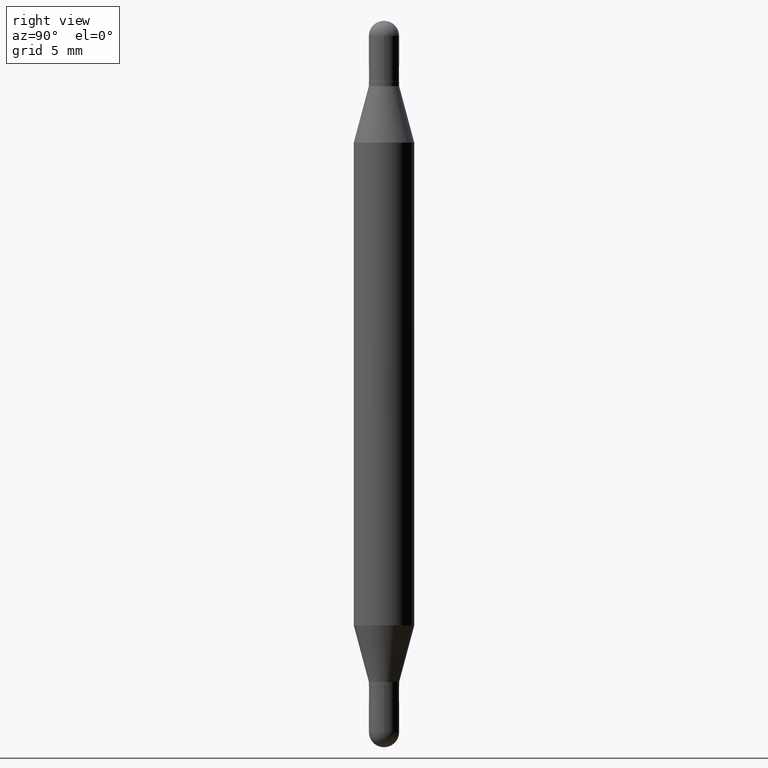
[diagram: clean part render]
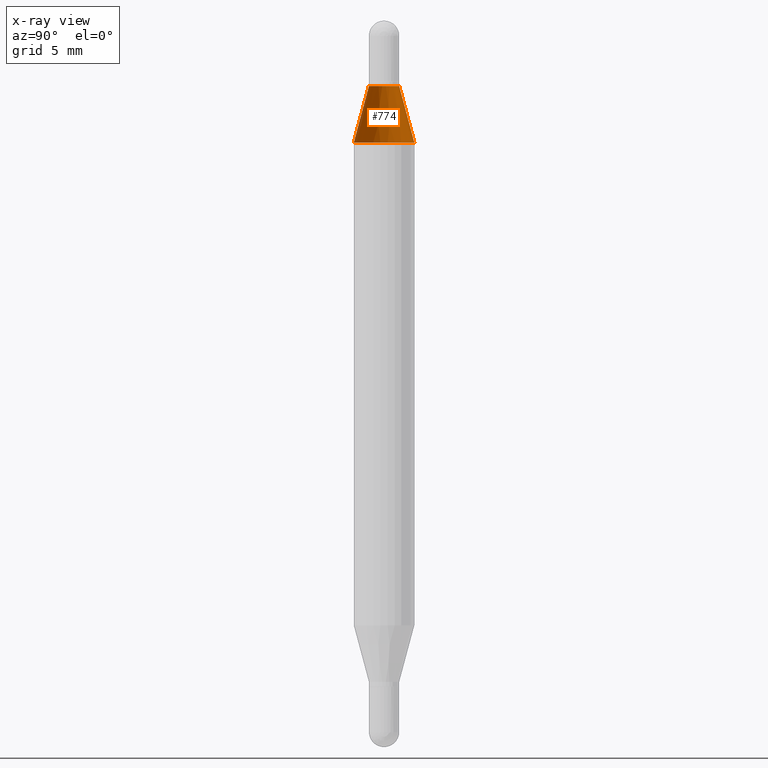
[diagram: x-ray — body ghosted, one internal face saturated and labeled with its STEP entity id]
A machine part, right view, then the same camera in x-ray: the body is ghosted and one INTERNAL B-rep face — a face not visible from any outside direction — is saturated and labeled: STEP entity #774.
In plain terms, the highlighted conical surface has half-angle 15 deg.
Its self-contained STEP definition (entity closure, byte-faithful):
#34 = CARTESIAN_POINT ( 'NONE',  ( 3.338398972236912231E-29, -4.781697257586543245E-16, -0.1350000000000003419 ) ) ;
#91 = EDGE_CURVE ( 'NONE', #1107, #821, #895, .T. ) ;
#94 = VECTOR ( 'NONE', #228, 39.37007874015748143 ) ;
#185 = CIRCLE ( 'NONE', #939, 0.06250000000000000000 ) ;
#228 = DIRECTION ( 'NONE',  ( 1.775627540710965497E-15, 0.2588190451025182415, -0.9659258262890689783 ) ) ;
#231 = CARTESIAN_POINT ( 'NONE',  ( -4.364351673553610517E-16, -0.06250000000000088818, -0.2516265877365284065 ) ) ;
#258 = CARTESIAN_POINT ( 'NONE',  ( 3.053163748328396024E-29, -8.840261609153203283E-16, -0.2516265877365286285 ) ) ;
#280 = EDGE_LOOP ( 'NONE', ( #906, #756, #676, #460 ) ) ;
#281 = DIRECTION ( 'NONE',  ( -6.982962677686265133E-15, -1.000000000000000000, 3.278217592397152544E-15 ) ) ;
#340 = EDGE_CURVE ( 'NONE', #1107, #508, #775, .T. ) ;
#410 = VERTEX_POINT ( 'NONE', #231 ) ;
#418 = CARTESIAN_POINT ( 'NONE',  ( 2.143905624303914227E-16, 0.03124999999999917080, -0.1350000000000004252 ) ) ;
#460 = ORIENTED_EDGE ( 'NONE', *, *, #566, .F. ) ;
#495 = DIRECTION ( 'NONE',  ( -6.982962677686265922E-15, -1.000000000000000000, 3.278217592397115862E-15 ) ) ;
#508 = VERTEX_POINT ( 'NONE', #836 ) ;
#522 = CARTESIAN_POINT ( 'NONE',  ( 4.287811248607511431E-16, 0.06249999999999909100, -0.2516265877365287951 ) ) ;
#526 = DIRECTION ( 'NONE',  ( -6.982962677686265133E-15, -1.000000000000000000, 3.278217592397152544E-15 ) ) ;
#566 = EDGE_CURVE ( 'NONE', #508, #410, #854, .T. ) ;
#596 = EDGE_CURVE ( 'NONE', #821, #410, #185, .T. ) ;
#598 = AXIS2_PLACEMENT_3D ( 'NONE', #34, #1052, #281 ) ;
#624 = CARTESIAN_POINT ( 'NONE',  ( 3.338398972236912231E-29, -4.781697257586543245E-16, -0.1350000000000003419 ) ) ;
#667 = DIRECTION ( 'NONE',  ( -1.807323732225330534E-15, -0.2588190451025250138, -0.9659258262890670910 ) ) ;
#676 = ORIENTED_EDGE ( 'NONE', *, *, #596, .T. ) ;
#688 = CARTESIAN_POINT ( 'NONE',  ( -2.182175836776599662E-16, -0.03125000000000012490, -0.1350000000000002309 ) ) ;
#741 = AXIS2_PLACEMENT_3D ( 'NONE', #624, #983, #526 ) ;
#743 = CONICAL_SURFACE ( 'NONE', #598, 0.03124999999999964959, 0.2617993877991502960 ) ;
#756 = ORIENTED_EDGE ( 'NONE', *, *, #91, .T. ) ;
#774 = ADVANCED_FACE ( 'NONE', ( #786 ), #743, .T. ) ;
#775 = CIRCLE ( 'NONE', #741, 0.03124999999999964959 ) ;
#786 = FACE_OUTER_BOUND ( 'NONE', #280, .T. ) ;
#801 = CARTESIAN_POINT ( 'NONE',  ( 2.143905624303913488E-16, 0.03124999999999917080, -0.1350000000000004252 ) ) ;
#821 = VERTEX_POINT ( 'NONE', #522 ) ;
#836 = CARTESIAN_POINT ( 'NONE',  ( -2.182175836776599662E-16, -0.03125000000000012490, -0.1350000000000002309 ) ) ;
#854 = LINE ( 'NONE', #688, #1030 ) ;
#895 = LINE ( 'NONE', #801, #94 ) ;
#906 = ORIENTED_EDGE ( 'NONE', *, *, #340, .F. ) ;
#939 = AXIS2_PLACEMENT_3D ( 'NONE', #258, #944, #495 ) ;
#944 = DIRECTION ( 'NONE',  ( 2.445713532774294348E-29, 3.479964929382474703E-15, 1.000000000000000000 ) ) ;
#983 = DIRECTION ( 'NONE',  ( 2.445713532774294348E-29, 3.479964929382474703E-15, 1.000000000000000000 ) ) ;
#1030 = VECTOR ( 'NONE', #667, 39.37007874015748143 ) ;
#1052 = DIRECTION ( 'NONE',  ( -2.445713532774294348E-29, -3.479964929382474703E-15, -1.000000000000000000 ) ) ;
#1107 = VERTEX_POINT ( 'NONE', #418 ) ;